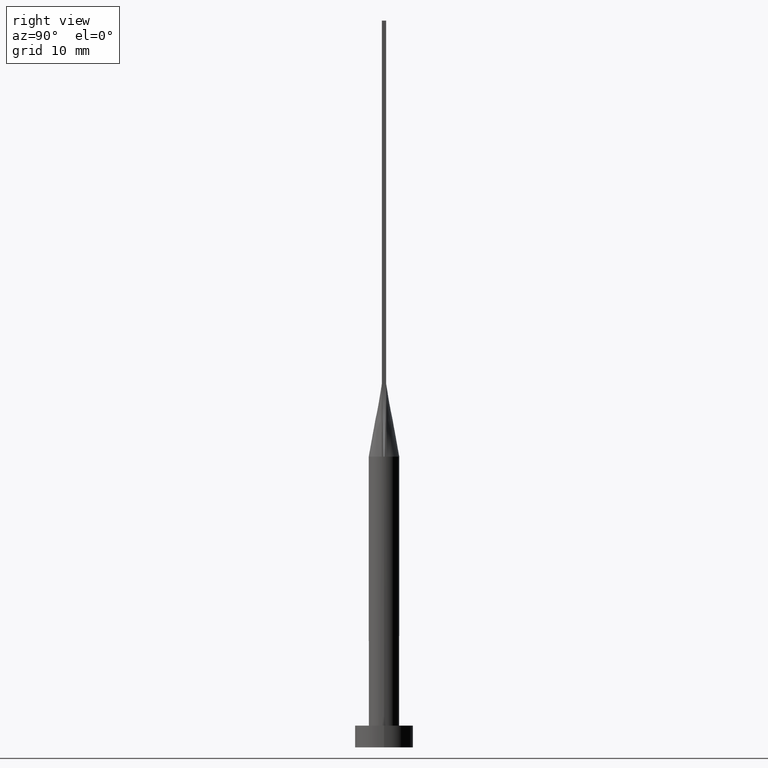
[diagram: clean part render]
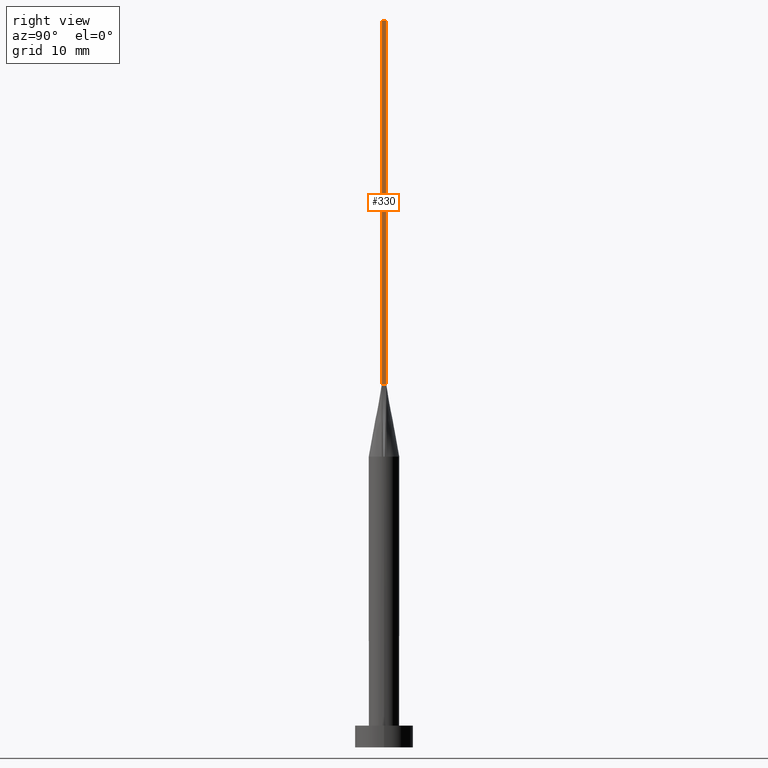
[diagram: same view with one face highlighted and labeled with its STEP entity id]
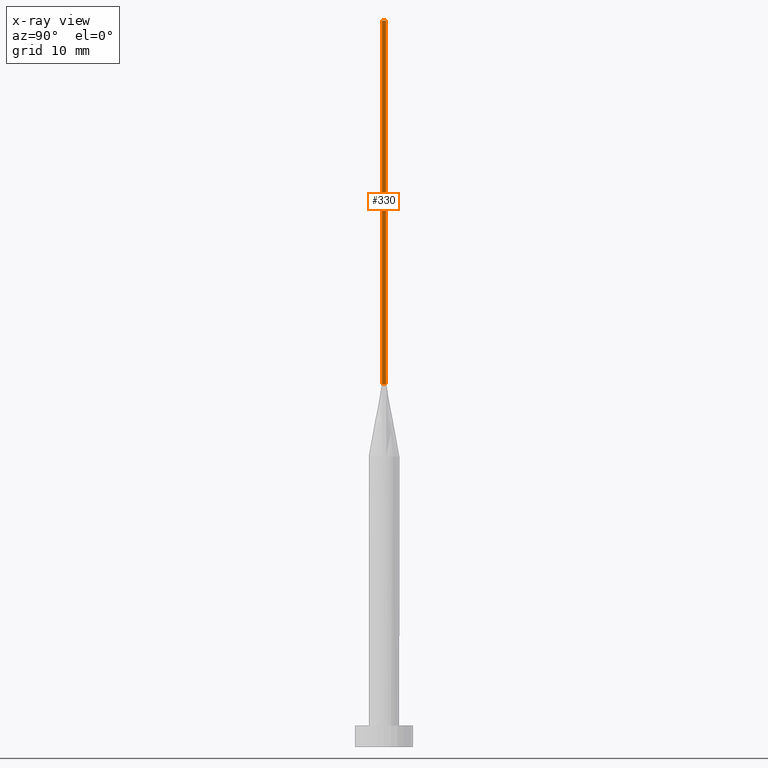
[diagram: x-ray of the same camera — body ghosted, the highlighted face saturated]
A machine part, right view. The second image highlights one B-rep face of the part: STEP entity #330.
The next image is the same camera in x-ray: the body ghosted, the highlighted face saturated — about 0% of this face is hidden behind the body in this view.
In plain terms, the highlighted planar face has unit normal (-1, 0, 0).
Its self-contained STEP definition (entity closure, byte-faithful):
#7 = DIRECTION ( 'NONE',  ( 1.084202172485504434E-15, 1.000000000000000000, 0.000000000000000000 ) ) ;
#8 = ORIENTED_EDGE ( 'NONE', *, *, #22, .T. ) ;
#12 = VECTOR ( 'NONE', #552, 1000.000000000000000 ) ;
#15 = PLANE ( 'NONE',  #459 ) ;
#22 = EDGE_CURVE ( 'NONE', #260, #569, #331, .T. ) ;
#64 = CARTESIAN_POINT ( 'NONE',  ( 1.899999999999999689, 0.3000000000000002109, 50.00000000000000000 ) ) ;
#66 = EDGE_CURVE ( 'NONE', #90, #262, #151, .T. ) ;
#68 = DIRECTION ( 'NONE',  ( -0.000000000000000000, -0.000000000000000000, -1.000000000000000000 ) ) ;
#90 = VERTEX_POINT ( 'NONE', #418 ) ;
#133 = EDGE_LOOP ( 'NONE', ( #8, #389, #279, #506 ) ) ;
#151 = LINE ( 'NONE', #245, #512 ) ;
#154 = CARTESIAN_POINT ( 'NONE',  ( 1.899999999999999023, -0.2999999999999997669, 100.0000000000000000 ) ) ;
#196 = DIRECTION ( 'NONE',  ( -1.084202172485504434E-15, -1.000000000000000000, 0.000000000000000000 ) ) ;
#198 = CARTESIAN_POINT ( 'NONE',  ( 1.899999999999999689, 0.3000000000000002109, 100.0000000000000000 ) ) ;
#245 = CARTESIAN_POINT ( 'NONE',  ( 1.899999999999999023, -0.2999999999999997669, 100.0000000000000000 ) ) ;
#254 = LINE ( 'NONE', #198, #554 ) ;
#260 = VERTEX_POINT ( 'NONE', #275 ) ;
#262 = VERTEX_POINT ( 'NONE', #268 ) ;
#268 = CARTESIAN_POINT ( 'NONE',  ( 1.899999999999999689, 0.3000000000000002109, 100.0000000000000000 ) ) ;
#275 = CARTESIAN_POINT ( 'NONE',  ( 1.899999999999999023, -0.2999999999999997669, 50.00000000000000000 ) ) ;
#279 = ORIENTED_EDGE ( 'NONE', *, *, #66, .F. ) ;
#292 = CARTESIAN_POINT ( 'NONE',  ( 1.899999999999999689, 0.3000000000000002109, 50.00000000000000000 ) ) ;
#330 = ADVANCED_FACE ( 'NONE', ( #548 ), #15, .F. ) ;
#331 = LINE ( 'NONE', #292, #12 ) ;
#348 = VECTOR ( 'NONE', #68, 1000.000000000000000 ) ;
#376 = DIRECTION ( 'NONE',  ( -1.000000000000000000, 1.084202172485504434E-15, 0.000000000000000000 ) ) ;
#389 = ORIENTED_EDGE ( 'NONE', *, *, #501, .F. ) ;
#418 = CARTESIAN_POINT ( 'NONE',  ( 1.899999999999999023, -0.2999999999999997669, 100.0000000000000000 ) ) ;
#427 = DIRECTION ( 'NONE',  ( -0.000000000000000000, -0.000000000000000000, -1.000000000000000000 ) ) ;
#459 = AXIS2_PLACEMENT_3D ( 'NONE', #467, #376, #196 ) ;
#467 = CARTESIAN_POINT ( 'NONE',  ( 1.899999999999999023, -0.2999999999999997669, 100.0000000000000000 ) ) ;
#501 = EDGE_CURVE ( 'NONE', #262, #569, #254, .T. ) ;
#506 = ORIENTED_EDGE ( 'NONE', *, *, #574, .T. ) ;
#512 = VECTOR ( 'NONE', #7, 1000.000000000000000 ) ;
#548 = FACE_OUTER_BOUND ( 'NONE', #133, .T. ) ;
#552 = DIRECTION ( 'NONE',  ( -3.614007241618348278E-16, 1.000000000000000000, -0.000000000000000000 ) ) ;
#553 = LINE ( 'NONE', #154, #348 ) ;
#554 = VECTOR ( 'NONE', #427, 1000.000000000000000 ) ;
#569 = VERTEX_POINT ( 'NONE', #64 ) ;
#574 = EDGE_CURVE ( 'NONE', #90, #260, #553, .T. ) ;